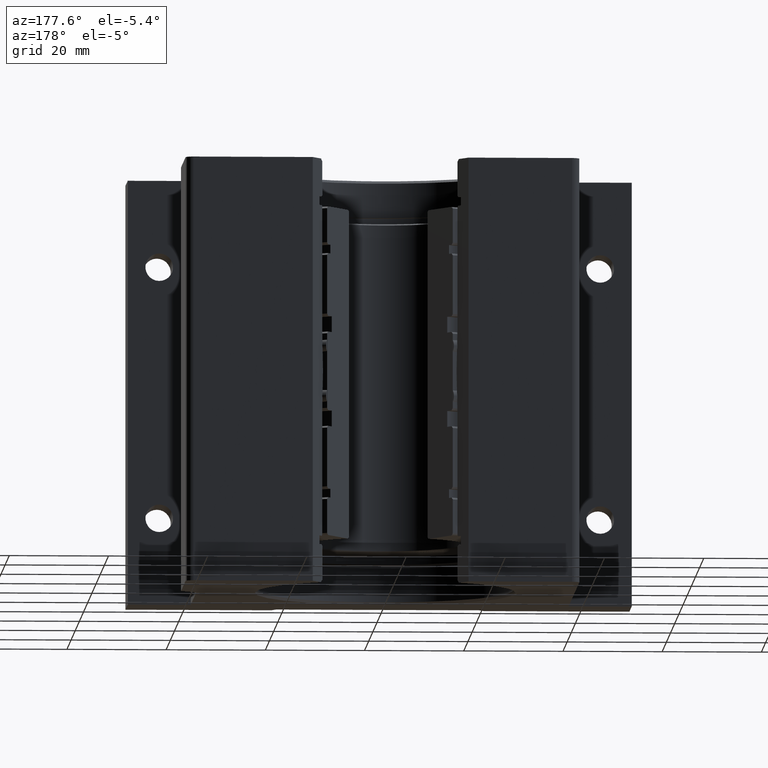
[diagram: clean part render]
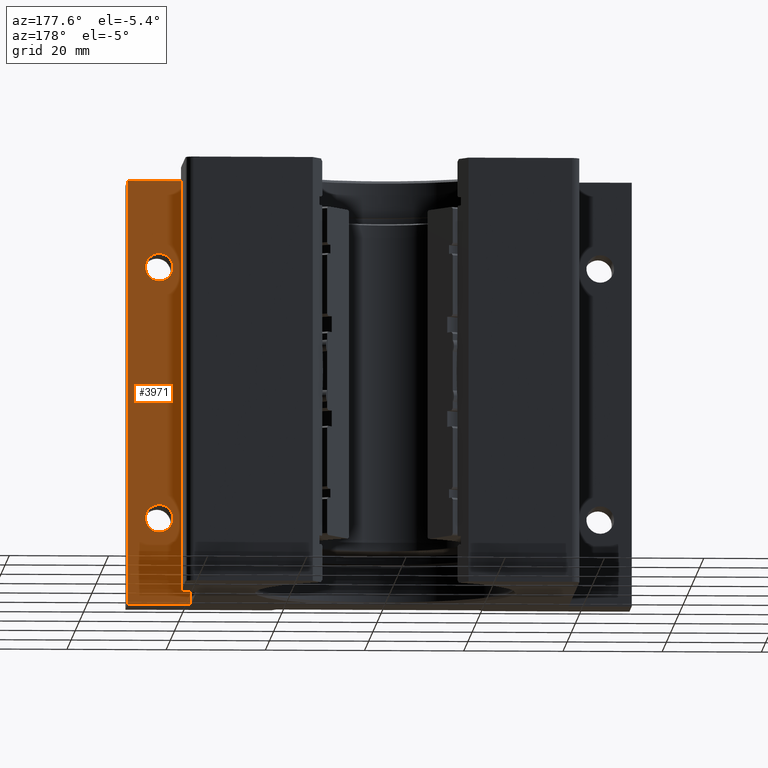
[diagram: same view with one face highlighted and labeled with its STEP entity id]
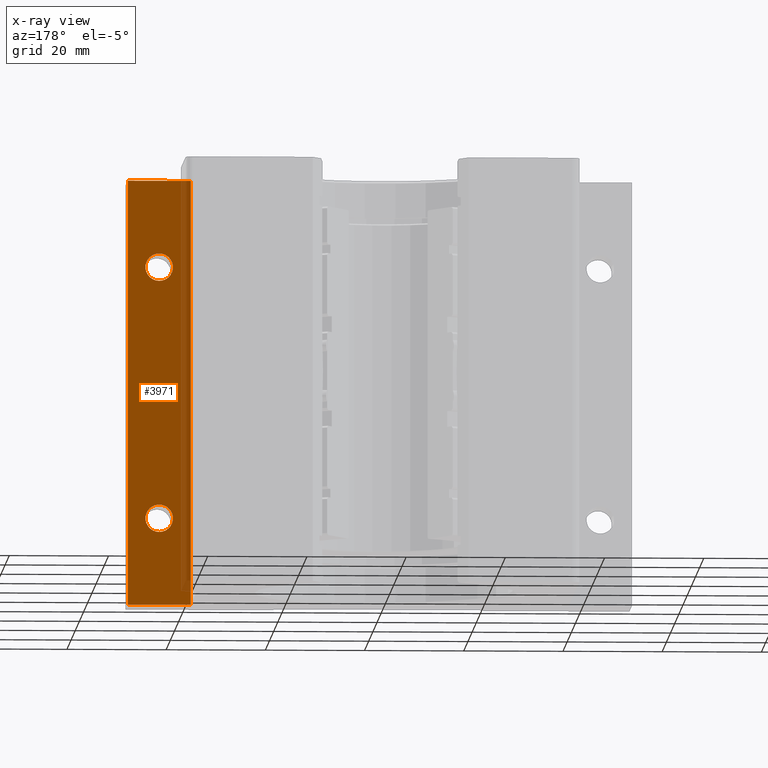
[diagram: x-ray of the same camera — body ghosted, the highlighted face saturated]
A machine part, auxiliary view. The second image highlights one B-rep face of the part: STEP entity #3971.
The next image is the same camera in x-ray: the body ghosted, the highlighted face saturated — about 16% of this face is hidden behind the body in this view.
In plain terms, the highlighted planar face has unit normal (-0, 1, 0).
Its self-contained STEP definition (entity closure, byte-faithful):
#21 = PLANE ( 'NONE',  #7624 ) ;
#40 = VERTEX_POINT ( 'NONE', #8119 ) ;
#119 = ORIENTED_EDGE ( 'NONE', *, *, #1921, .F. ) ;
#278 = CIRCLE ( 'NONE', #2942, 0.1093749999999999722 ) ;
#600 = CARTESIAN_POINT ( 'NONE',  ( 1.750000000000000000, -1.062999999999999501, 0.8906250000000000000 ) ) ;
#644 = CARTESIAN_POINT ( 'NONE',  ( 2.903954417265111121E-16, -1.062999999999999945, -2.364883938398306462 ) ) ;
#840 = EDGE_CURVE ( 'NONE', #3307, #5917, #5266, .T. ) ;
#1085 = LINE ( 'NONE', #7079, #6784 ) ;
#1207 = ORIENTED_EDGE ( 'NONE', *, *, #3423, .F. ) ;
#1235 = CARTESIAN_POINT ( 'NONE',  ( 1.750000000000000000, -1.062999999999999501, 1.000000000000000222 ) ) ;
#1242 = DIRECTION ( 'NONE',  ( -1.000000000000000000, -2.731847993664262725E-16, 0.000000000000000000 ) ) ;
#1297 = DIRECTION ( 'NONE',  ( 0.000000000000000000, 0.000000000000000000, 1.000000000000000000 ) ) ;
#1664 = EDGE_CURVE ( 'NONE', #3916, #6048, #10687, .T. ) ;
#1703 = FACE_OUTER_BOUND ( 'NONE', #6910, .T. ) ;
#1921 = EDGE_CURVE ( 'NONE', #40, #5099, #3873, .T. ) ;
#2005 = CARTESIAN_POINT ( 'NONE',  ( 2.000000000000000000, -1.062999999999999501, 1.687500000000000000 ) ) ;
#2088 = EDGE_CURVE ( 'NONE', #7793, #2559, #7730, .T. ) ;
#2173 = EDGE_CURVE ( 'NONE', #3916, #40, #4382, .T. ) ;
#2456 = DIRECTION ( 'NONE',  ( -1.000000000000000000, 0.000000000000000000, 0.000000000000000000 ) ) ;
#2462 = CARTESIAN_POINT ( 'NONE',  ( 1.750000000000000000, -1.062999999999999501, 1.109375000000000222 ) ) ;
#2559 = VERTEX_POINT ( 'NONE', #3893 ) ;
#2886 = CARTESIAN_POINT ( 'NONE',  ( 2.903954417265111121E-16, -1.062999999999999945, -1.687500000000000000 ) ) ;
#2942 = AXIS2_PLACEMENT_3D ( 'NONE', #1235, #6914, #9623 ) ;
#3073 = EDGE_CURVE ( 'NONE', #2559, #7793, #5684, .T. ) ;
#3307 = VERTEX_POINT ( 'NONE', #600 ) ;
#3346 = FACE_BOUND ( 'NONE', #5770, .T. ) ;
#3423 = EDGE_CURVE ( 'NONE', #5099, #6048, #1085, .T. ) ;
#3595 = CARTESIAN_POINT ( 'NONE',  ( 1.750000000000000000, -1.062999999999999501, 1.000000000000000222 ) ) ;
#3873 = LINE ( 'NONE', #7290, #9647 ) ;
#3893 = CARTESIAN_POINT ( 'NONE',  ( 1.750000000000000000, -1.062999999999999501, -0.8906249999999997780 ) ) ;
#3916 = VERTEX_POINT ( 'NONE', #7253 ) ;
#3971 = ADVANCED_FACE ( 'NONE', ( #3346, #7471, #1703 ), #21, .T. ) ;
#4063 = ORIENTED_EDGE ( 'NONE', *, *, #2173, .F. ) ;
#4212 = DIRECTION ( 'NONE',  ( -1.000000000000000000, 0.000000000000000000, 0.000000000000000000 ) ) ;
#4382 = LINE ( 'NONE', #2886, #6503 ) ;
#4578 = ORIENTED_EDGE ( 'NONE', *, *, #840, .F. ) ;
#4681 = ORIENTED_EDGE ( 'NONE', *, *, #2088, .F. ) ;
#5043 = CARTESIAN_POINT ( 'NONE',  ( 1.750000000000000000, -1.062999999999999501, -0.9999999999999996669 ) ) ;
#5099 = VERTEX_POINT ( 'NONE', #2005 ) ;
#5266 = CIRCLE ( 'NONE', #8948, 0.1093749999999999722 ) ;
#5456 = DIRECTION ( 'NONE',  ( 0.000000000000000000, 0.000000000000000000, 1.000000000000000000 ) ) ;
#5684 = CIRCLE ( 'NONE', #10649, 0.1093749999999999722 ) ;
#5770 = EDGE_LOOP ( 'NONE', ( #6424, #4578 ) ) ;
#5917 = VERTEX_POINT ( 'NONE', #2462 ) ;
#6048 = VERTEX_POINT ( 'NONE', #7558 ) ;
#6120 = DIRECTION ( 'NONE',  ( -1.000000000000000000, 0.000000000000000000, 0.000000000000000000 ) ) ;
#6241 = ORIENTED_EDGE ( 'NONE', *, *, #1664, .T. ) ;
#6424 = ORIENTED_EDGE ( 'NONE', *, *, #7661, .F. ) ;
#6503 = VECTOR ( 'NONE', #7116, 39.37007874015748143 ) ;
#6784 = VECTOR ( 'NONE', #1242, 39.37007874015748143 ) ;
#6910 = EDGE_LOOP ( 'NONE', ( #4063, #6241, #1207, #119 ) ) ;
#6914 = DIRECTION ( 'NONE',  ( -2.731847993664262725E-16, 1.000000000000000000, 0.000000000000000000 ) ) ;
#7079 = CARTESIAN_POINT ( 'NONE',  ( 2.903954417265111121E-16, -1.062999999999999945, 1.687500000000000000 ) ) ;
#7116 = DIRECTION ( 'NONE',  ( 1.000000000000000000, 2.731847993664262725E-16, 0.000000000000000000 ) ) ;
#7253 = CARTESIAN_POINT ( 'NONE',  ( 1.499999999999999778, -1.062999999999999501, -1.687500000000000000 ) ) ;
#7290 = CARTESIAN_POINT ( 'NONE',  ( 2.000000000000000000, -1.062999999999999501, -2.364883938398306462 ) ) ;
#7471 = FACE_BOUND ( 'NONE', #8444, .T. ) ;
#7558 = CARTESIAN_POINT ( 'NONE',  ( 1.499999999999999778, -1.062999999999999501, 1.687500000000000000 ) ) ;
#7624 = AXIS2_PLACEMENT_3D ( 'NONE', #644, #10058, #9319 ) ;
#7661 = EDGE_CURVE ( 'NONE', #5917, #3307, #278, .T. ) ;
#7730 = CIRCLE ( 'NONE', #10567, 0.1093749999999999722 ) ;
#7793 = VERTEX_POINT ( 'NONE', #8849 ) ;
#8119 = CARTESIAN_POINT ( 'NONE',  ( 2.000000000000000000, -1.062999999999999501, -1.687500000000000000 ) ) ;
#8444 = EDGE_LOOP ( 'NONE', ( #8971, #4681 ) ) ;
#8634 = DIRECTION ( 'NONE',  ( -2.731847993664262725E-16, 1.000000000000000000, 0.000000000000000000 ) ) ;
#8849 = CARTESIAN_POINT ( 'NONE',  ( 1.750000000000000000, -1.062999999999999501, -1.109374999999999778 ) ) ;
#8948 = AXIS2_PLACEMENT_3D ( 'NONE', #3595, #8634, #4212 ) ;
#8971 = ORIENTED_EDGE ( 'NONE', *, *, #3073, .F. ) ;
#9319 = DIRECTION ( 'NONE',  ( -1.000000000000000000, -2.731847993664262725E-16, 0.000000000000000000 ) ) ;
#9623 = DIRECTION ( 'NONE',  ( -1.000000000000000000, 0.000000000000000000, 0.000000000000000000 ) ) ;
#9647 = VECTOR ( 'NONE', #1297, 39.37007874015748143 ) ;
#9884 = VECTOR ( 'NONE', #5456, 39.37007874015748143 ) ;
#10025 = CARTESIAN_POINT ( 'NONE',  ( 1.750000000000000000, -1.062999999999999501, -0.9999999999999996669 ) ) ;
#10058 = DIRECTION ( 'NONE',  ( -2.731847993664262725E-16, 1.000000000000000000, 0.000000000000000000 ) ) ;
#10091 = DIRECTION ( 'NONE',  ( -2.731847993664262725E-16, 1.000000000000000000, 0.000000000000000000 ) ) ;
#10567 = AXIS2_PLACEMENT_3D ( 'NONE', #5043, #10091, #6120 ) ;
#10574 = CARTESIAN_POINT ( 'NONE',  ( 1.499999999999999778, -1.062999999999999501, -2.364883938398306462 ) ) ;
#10649 = AXIS2_PLACEMENT_3D ( 'NONE', #10025, #10880, #2456 ) ;
#10687 = LINE ( 'NONE', #10574, #9884 ) ;
#10880 = DIRECTION ( 'NONE',  ( -2.731847993664262725E-16, 1.000000000000000000, 0.000000000000000000 ) ) ;